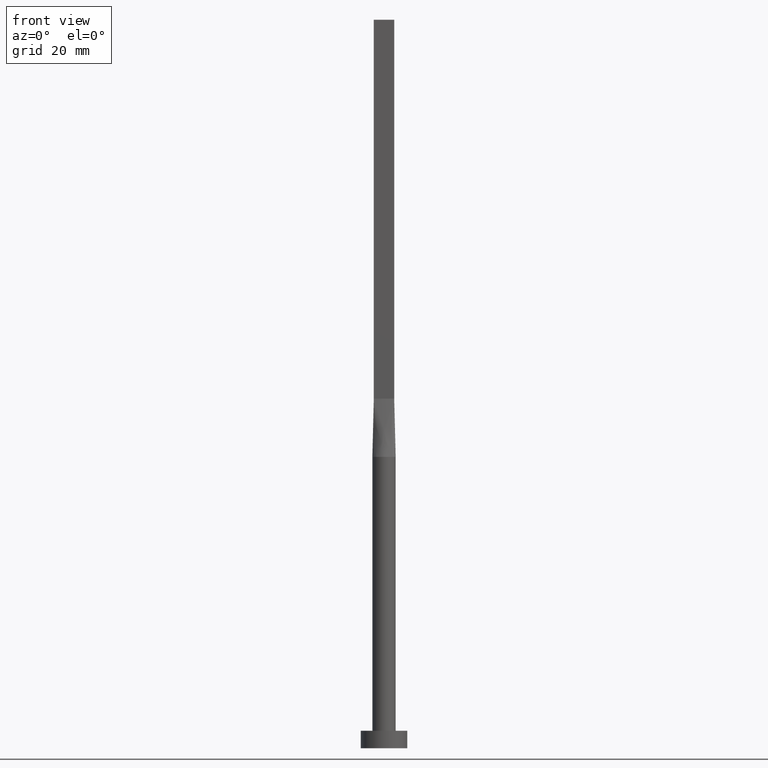
[diagram: clean part render]
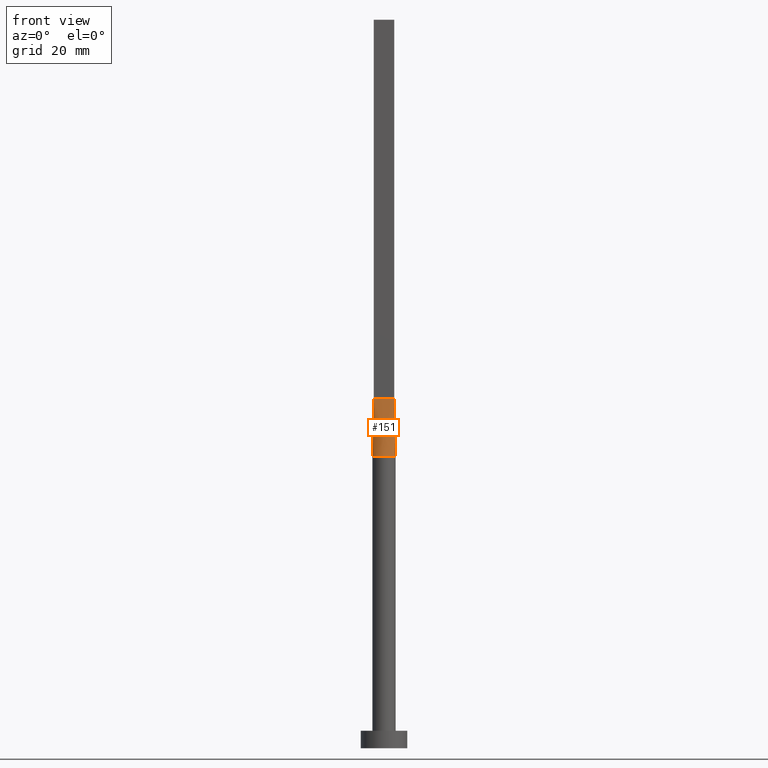
[diagram: same view with one face highlighted and labeled with its STEP entity id]
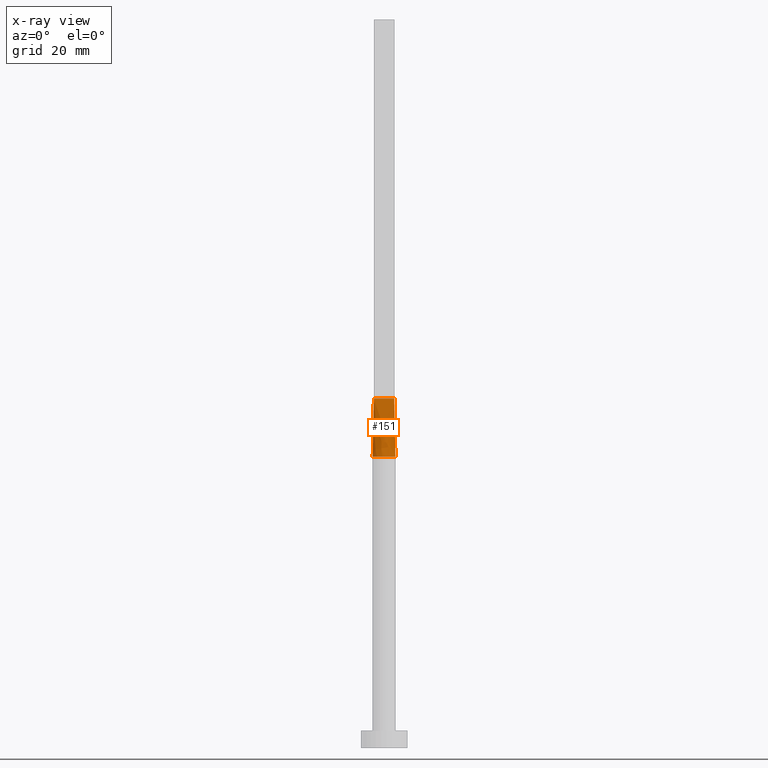
[diagram: x-ray of the same camera — body ghosted, the highlighted face saturated]
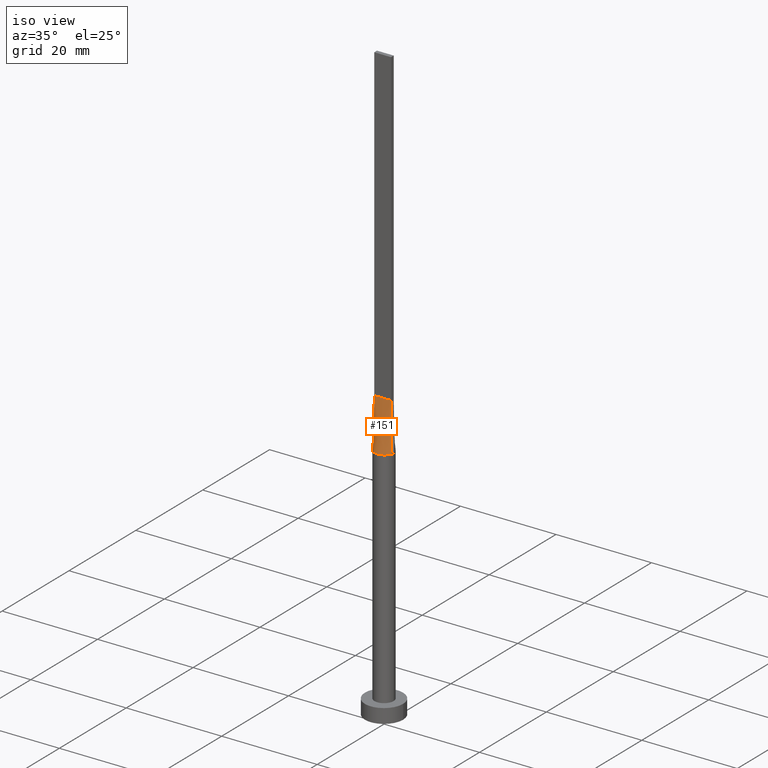
[diagram: same view with one face highlighted and labeled with its STEP entity id]
A machine part, front view. The second image highlights one B-rep face of the part: STEP entity #151.
The next image is the same camera in x-ray: the body ghosted, the highlighted face saturated — about 0% of this face is hidden behind the body in this view.
A second angle (iso view) of the same face is appended — the face is thin or edge-on in the first view.
In plain terms, the highlighted face is a freeform B-spline surface patch.
Its self-contained STEP definition (entity closure, byte-faithful):
#6 = CARTESIAN_POINT ( 'NONE',  ( -1.669156890509896796, -1.119033439449083733, 49.99999999999998579 ) ) ;
#9 = CARTESIAN_POINT ( 'NONE',  ( 0.7291666666666680729, -0.3999999999999997446, 60.00000000000000000 ) ) ;
#18 = EDGE_CURVE ( 'NONE', #82, #211, #502, .T. ) ;
#19 = CARTESIAN_POINT ( 'NONE',  ( 1.020833333333334592, -0.3999999999999997446, 60.00000000000000000 ) ) ;
#38 = EDGE_CURVE ( 'NONE', #211, #125, #122, .T. ) ;
#57 = CARTESIAN_POINT ( 'NONE',  ( 0.2916666666666682395, -0.3999999999999997446, 60.00000000000000000 ) ) ;
#59 = CARTESIAN_POINT ( 'NONE',  ( -1.604166666666666519, -0.3999999999999996891, 60.00000000000000711 ) ) ;
#68 = DIRECTION ( 'NONE',  ( 0.000000000000000000, 0.000000000000000000, 1.000000000000000000 ) ) ;
#72 = CARTESIAN_POINT ( 'NONE',  ( 1.849858506571867345, -0.4228248015021406347, 55.00000000000000711 ) ) ;
#77 = CARTESIAN_POINT ( 'NONE',  ( -1.949717013143734690, -0.4456496030042821355, 50.00000000000000000 ) ) ;
#82 = VERTEX_POINT ( 'NONE', #307 ) ;
#100 = CARTESIAN_POINT ( 'NONE',  ( -0.1458333333333317328, -0.3999999999999997446, 60.00000000000000000 ) ) ;
#104 = CARTESIAN_POINT ( 'NONE',  ( 1.209404336647714517, -1.609323485403446385, 50.00000000000000711 ) ) ;
#108 = DIRECTION ( 'NONE',  ( -0.01996751149463110026, -0.004564002627344275649, -0.9997902121768992290 ) ) ;
#112 = LINE ( 'NONE', #72, #454 ) ;
#122 = CIRCLE ( 'NONE', #386, 2.000000000000000000 ) ;
#125 = VERTEX_POINT ( 'NONE', #535 ) ;
#132 = CARTESIAN_POINT ( 'NONE',  ( 1.750000000000000000, -0.3999999999999996891, 60.00000000000000711 ) ) ;
#148 = EDGE_CURVE ( 'NONE', #125, #410, #112, .T. ) ;
#149 = CARTESIAN_POINT ( 'NONE',  ( 1.949717013143734690, -0.4456496030042815248, 50.00000000000000000 ) ) ;
#151 = ADVANCED_FACE ( 'NONE', ( #519 ), #421, .T. ) ;
#161 = CARTESIAN_POINT ( 'NONE',  ( 1.604166666666666963, -0.3999999999999997446, 60.00000000000000000 ) ) ;
#170 = DIRECTION ( 'NONE',  ( -0.01996751149463110026, 0.004564002627344216668, 0.9997902121768992290 ) ) ;
#186 = CARTESIAN_POINT ( 'NONE',  ( -1.750000000000000000, -0.3999999999999996891, 60.00000000000000711 ) ) ;
#193 = CARTESIAN_POINT ( 'NONE',  ( -0.5307032259479425029, -1.945168061822315275, 50.00000000000000711 ) ) ;
#200 = CARTESIAN_POINT ( 'NONE',  ( 1.669156890509896574, -1.119033439449083733, 50.00000000000000711 ) ) ;
#205 = EDGE_LOOP ( 'NONE', ( #331, #241, #252, #295 ) ) ;
#210 = CARTESIAN_POINT ( 'NONE',  ( -1.949888833174281633, -0.4456892479726881628, 50.00000000000000000 ) ) ;
#211 = VERTEX_POINT ( 'NONE', #210 ) ;
#237 = CARTESIAN_POINT ( 'NONE',  ( 0.5833333333333348136, -0.3999999999999997446, 60.00000000000000000 ) ) ;
#241 = ORIENTED_EDGE ( 'NONE', *, *, #148, .T. ) ;
#246 = CARTESIAN_POINT ( 'NONE',  ( 0.5307032259479425029, -1.945168061822314831, 50.00000000000000000 ) ) ;
#247 = CARTESIAN_POINT ( 'NONE',  ( -1.542259513637948887, -1.293837904363074331, 50.00000000000000711 ) ) ;
#248 = LINE ( 'NONE', #186, #425 ) ;
#249 = EDGE_CURVE ( 'NONE', #82, #410, #248, .T. ) ;
#252 = ORIENTED_EDGE ( 'NONE', *, *, #249, .F. ) ;
#277 = CARTESIAN_POINT ( 'NONE',  ( 0.1458333333333349524, -0.3999999999999997446, 60.00000000000000000 ) ) ;
#290 = VECTOR ( 'NONE', #108, 1000.000000000000114 ) ;
#295 = ORIENTED_EDGE ( 'NONE', *, *, #18, .T. ) ;
#307 = CARTESIAN_POINT ( 'NONE',  ( -1.750000000000000000, -0.3999999999999996891, 60.00000000000000711 ) ) ;
#310 = CARTESIAN_POINT ( 'NONE',  ( -1.020833333333332371, -0.3999999999999997446, 60.00000000000000000 ) ) ;
#315 = CARTESIAN_POINT ( 'NONE',  ( 1.458333333333333925, -0.3999999999999997446, 60.00000000000000000 ) ) ;
#317 = CARTESIAN_POINT ( 'NONE',  ( -1.166666666666665630, -0.3999999999999996891, 60.00000000000000000 ) ) ;
#330 = CARTESIAN_POINT ( 'NONE',  ( 1.542259513637949109, -1.293837904363074331, 50.00000000000000711 ) ) ;
#331 = ORIENTED_EDGE ( 'NONE', *, *, #38, .T. ) ;
#355 = CARTESIAN_POINT ( 'NONE',  ( -0.7291666666666654084, -0.3999999999999997446, 60.00000000000000000 ) ) ;
#359 = CARTESIAN_POINT ( 'NONE',  ( -0.2916666666666651309, -0.3999999999999997446, 60.00000000000000000 ) ) ;
#362 = CARTESIAN_POINT ( 'NONE',  ( 1.854458107241758746, -0.7741483657718503109, 50.00000000000000711 ) ) ;
#369 = CARTESIAN_POINT ( 'NONE',  ( -1.849858506571867345, -0.4228248015021409678, 55.00000000000000711 ) ) ;
#384 = CARTESIAN_POINT ( 'NONE',  ( -1.750000000000000000, -0.3999999999999996891, 60.00000000000000711 ) ) ;
#386 = AXIS2_PLACEMENT_3D ( 'NONE', #461, #68, #419 ) ;
#401 = CARTESIAN_POINT ( 'NONE',  ( -1.913513237607142425, -0.6040411209768705714, 50.00000000000000711 ) ) ;
#410 = VERTEX_POINT ( 'NONE', #132 ) ;
#418 = CARTESIAN_POINT ( 'NONE',  ( -1.209404336647714739, -1.609323485403446607, 49.99999999999999289 ) ) ;
#419 = DIRECTION ( 'NONE',  ( 1.000000000000000000, 0.000000000000000000, 0.000000000000000000 ) ) ;
#421 = B_SPLINE_SURFACE_WITH_KNOTS ( 'NONE', 3, 1, ( 
 ( #77, #384 ),
 ( #401, #59 ),
 ( #447, #554 ),
 ( #6, #317 ),
 ( #247, #310 ),
 ( #418, #355 ),
 ( #542, #491 ),
 ( #193, #359 ),
 ( #545, #100 ),
 ( #553, #277 ),
 ( #246, #57 ),
 ( #464, #237 ),
 ( #104, #9 ),
 ( #330, #19 ),
 ( #200, #560 ),
 ( #362, #315 ),
 ( #551, #161 ),
 ( #149, #467 ) ),
 .UNSPECIFIED., .F., .F., .F.,
 ( 4, 2, 2, 2, 2, 2, 2, 2, 4 ),
 ( 2, 2 ),
 ( 0.000000000000000000, 0.1250000000000000000, 0.2500000000000000000, 0.3750000000000000000, 0.5000000000000000000, 0.6250000000000000000, 0.7500000000000000000, 0.8750000000000000000, 1.000000000000000000 ),
 ( 0.000000000000000000, 1.000000000000000000 ),
 .UNSPECIFIED. ) ;
#425 = VECTOR ( 'NONE', #536, 1000.000000000000000 ) ;
#447 = CARTESIAN_POINT ( 'NONE',  ( -1.854458107241759190, -0.7741483657718508660, 50.00000000000000711 ) ) ;
#454 = VECTOR ( 'NONE', #170, 1000.000000000000114 ) ;
#461 = CARTESIAN_POINT ( 'NONE',  ( 0.000000000000000000, 0.000000000000000000, 50.00000000000000000 ) ) ;
#464 = CARTESIAN_POINT ( 'NONE',  ( 1.002818635501955047, -1.749193953526917866, 49.99999999999999289 ) ) ;
#467 = CARTESIAN_POINT ( 'NONE',  ( 1.750000000000000000, -0.3999999999999996891, 60.00000000000000711 ) ) ;
#491 = CARTESIAN_POINT ( 'NONE',  ( -0.5833333333333319271, -0.3999999999999997446, 60.00000000000000000 ) ) ;
#502 = LINE ( 'NONE', #369, #290 ) ;
#519 = FACE_OUTER_BOUND ( 'NONE', #205, .T. ) ;
#535 = CARTESIAN_POINT ( 'NONE',  ( 1.949907982895221048, -0.4456935569447296186, 50.00000000000000000 ) ) ;
#536 = DIRECTION ( 'NONE',  ( 1.000000000000000000, 0.000000000000000000, 0.000000000000000000 ) ) ;
#542 = CARTESIAN_POINT ( 'NONE',  ( -1.002818635501955047, -1.749193953526917866, 50.00000000000000711 ) ) ;
#545 = CARTESIAN_POINT ( 'NONE',  ( -0.2657394870669760878, -2.000000000000000000, 50.00000000000000711 ) ) ;
#551 = CARTESIAN_POINT ( 'NONE',  ( 1.913513237607143314, -0.6040411209768704603, 50.00000000000000711 ) ) ;
#553 = CARTESIAN_POINT ( 'NONE',  ( 0.2657394870669759768, -2.000000000000000444, 50.00000000000000711 ) ) ;
#554 = CARTESIAN_POINT ( 'NONE',  ( -1.458333333333332815, -0.3999999999999996891, 60.00000000000000711 ) ) ;
#560 = CARTESIAN_POINT ( 'NONE',  ( 1.166666666666667629, -0.3999999999999997446, 60.00000000000000000 ) ) ;